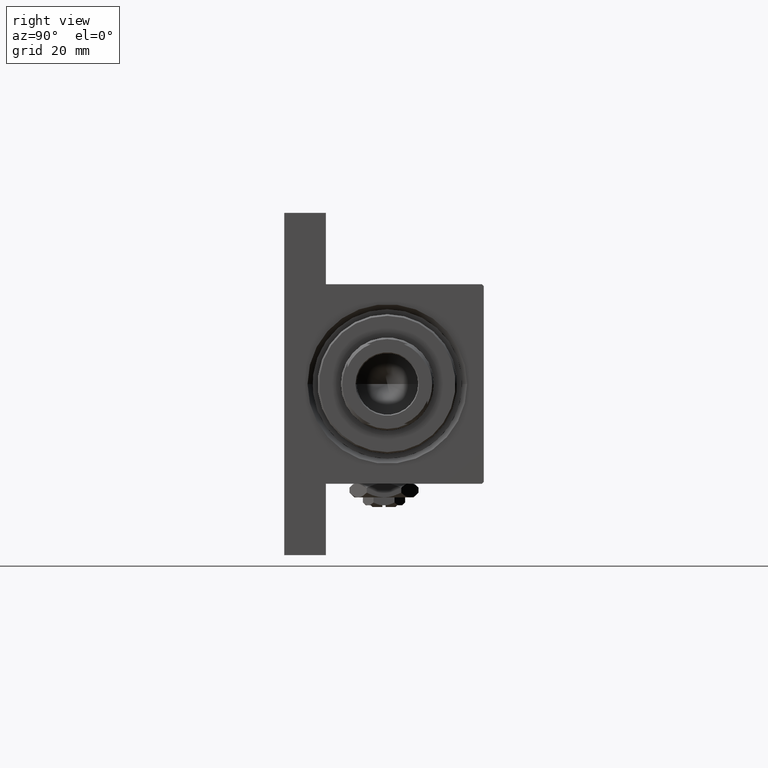
[diagram: clean part render]
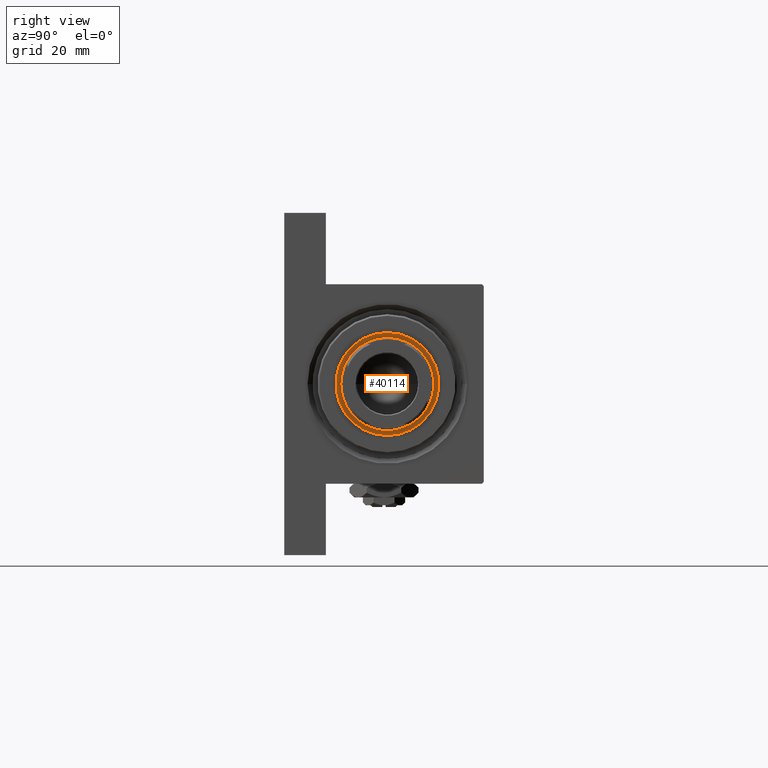
[diagram: same view with one face highlighted and labeled with its STEP entity id]
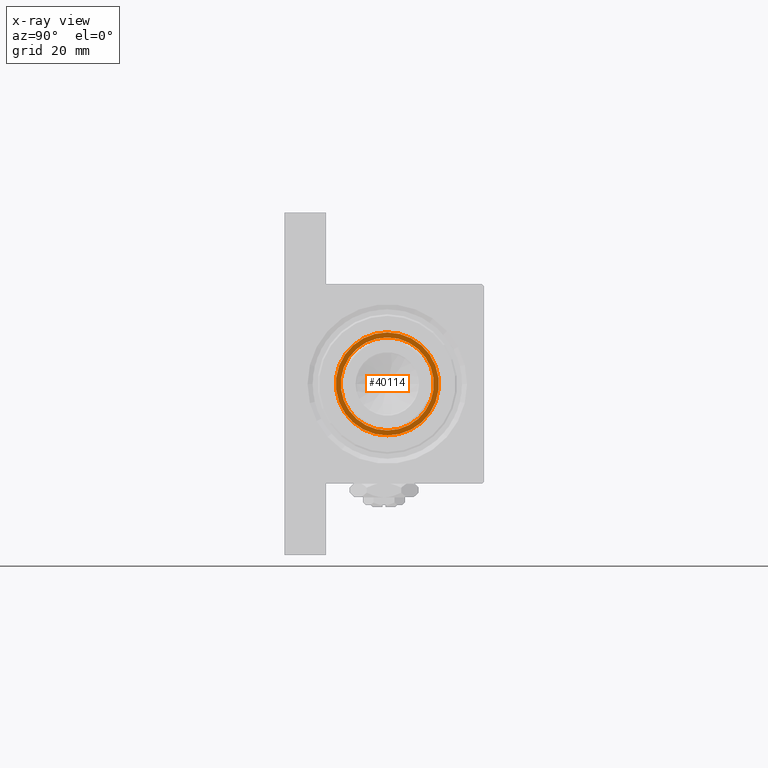
[diagram: x-ray of the same camera — body ghosted, the highlighted face saturated]
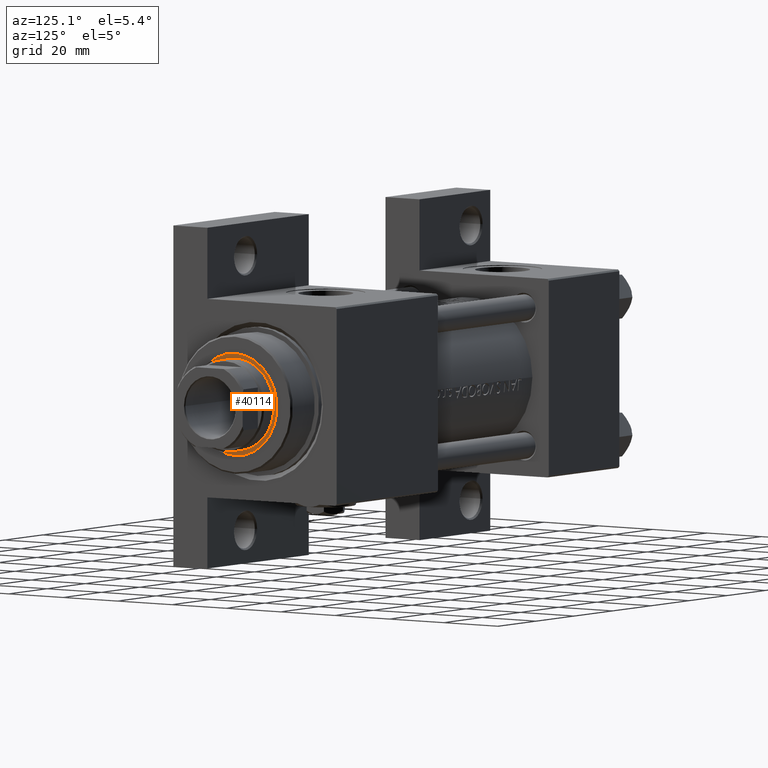
[diagram: same view with one face highlighted and labeled with its STEP entity id]
A machine part, right view. The second image highlights one B-rep face of the part: STEP entity #40114.
The next image is the same camera in x-ray: the body ghosted, the highlighted face saturated — about 0% of this face is hidden behind the body in this view.
A second angle (auxiliary view) of the same face is appended — the face is thin or edge-on in the first view.
In plain terms, the highlighted planar face has unit normal (1, 0, 0).
Its self-contained STEP definition (entity closure, byte-faithful):
#306 = DIRECTION ( 'NONE',  ( 0.000000000000000000, 0.000000000000000000, 1.000000000000000000 ) ) ;
#4085 = EDGE_CURVE ( 'NONE', #44222, #7214, #31123, .T. ) ;
#4403 = AXIS2_PLACEMENT_3D ( 'NONE', #18487, #41420, #30679 ) ;
#7214 = VERTEX_POINT ( 'NONE', #13756 ) ;
#7522 = CIRCLE ( 'NONE', #35390, 14.00000000000000178 ) ;
#8001 = FACE_BOUND ( 'NONE', #24059, .T. ) ;
#9234 = AXIS2_PLACEMENT_3D ( 'NONE', #37227, #306, #33748 ) ;
#9330 = AXIS2_PLACEMENT_3D ( 'NONE', #46332, #23369, #16162 ) ;
#13711 = EDGE_CURVE ( 'NONE', #7214, #44222, #7522, .T. ) ;
#13756 = CARTESIAN_POINT ( 'NONE',  ( 14.00000000000000178, 0.000000000000000000, 40.20000000000000284 ) ) ;
#14920 = CIRCLE ( 'NONE', #9330, 15.50000000000000000 ) ;
#16162 = DIRECTION ( 'NONE',  ( 1.000000000000000000, 0.000000000000000000, 0.000000000000000000 ) ) ;
#17100 = VERTEX_POINT ( 'NONE', #28652 ) ;
#18390 = AXIS2_PLACEMENT_3D ( 'NONE', #22452, #34419, #33932 ) ;
#18442 = ORIENTED_EDGE ( 'NONE', *, *, #4085, .T. ) ;
#18487 = CARTESIAN_POINT ( 'NONE',  ( 0.000000000000000000, 0.000000000000000000, 40.20000000000000284 ) ) ;
#18555 = VERTEX_POINT ( 'NONE', #40348 ) ;
#18569 = ORIENTED_EDGE ( 'NONE', *, *, #20154, .T. ) ;
#18585 = CARTESIAN_POINT ( 'NONE',  ( 0.000000000000000000, 0.000000000000000000, 40.20000000000000284 ) ) ;
#20154 = EDGE_CURVE ( 'NONE', #18555, #17100, #21187, .T. ) ;
#21187 = CIRCLE ( 'NONE', #9234, 15.50000000000000000 ) ;
#22452 = CARTESIAN_POINT ( 'NONE',  ( 0.000000000000000000, 0.000000000000000000, 40.20000000000000284 ) ) ;
#23369 = DIRECTION ( 'NONE',  ( 0.000000000000000000, 0.000000000000000000, 1.000000000000000000 ) ) ;
#24059 = EDGE_LOOP ( 'NONE', ( #39918, #18442 ) ) ;
#25562 = DIRECTION ( 'NONE',  ( 1.000000000000000000, 0.000000000000000000, 0.000000000000000000 ) ) ;
#28479 = CARTESIAN_POINT ( 'NONE',  ( -14.00000000000000178, 1.714505518806294835E-15, 40.20000000000000284 ) ) ;
#28652 = CARTESIAN_POINT ( 'NONE',  ( -15.50000000000000000, 1.898202538678397557E-15, 40.20000000000000284 ) ) ;
#30679 = DIRECTION ( 'NONE',  ( 1.000000000000000000, 0.000000000000000000, -0.000000000000000000 ) ) ;
#31123 = CIRCLE ( 'NONE', #18390, 14.00000000000000178 ) ;
#33748 = DIRECTION ( 'NONE',  ( 1.000000000000000000, 0.000000000000000000, 0.000000000000000000 ) ) ;
#33932 = DIRECTION ( 'NONE',  ( 1.000000000000000000, 0.000000000000000000, 0.000000000000000000 ) ) ;
#33939 = PLANE ( 'NONE',  #4403 ) ;
#34419 = DIRECTION ( 'NONE',  ( -0.000000000000000000, -0.000000000000000000, -1.000000000000000000 ) ) ;
#35288 = ORIENTED_EDGE ( 'NONE', *, *, #45307, .T. ) ;
#35390 = AXIS2_PLACEMENT_3D ( 'NONE', #18585, #48034, #25562 ) ;
#37227 = CARTESIAN_POINT ( 'NONE',  ( 0.000000000000000000, 0.000000000000000000, 40.20000000000000284 ) ) ;
#39264 = EDGE_LOOP ( 'NONE', ( #18569, #35288 ) ) ;
#39918 = ORIENTED_EDGE ( 'NONE', *, *, #13711, .T. ) ;
#40114 = ADVANCED_FACE ( 'NONE', ( #45412, #8001 ), #33939, .T. ) ;
#40348 = CARTESIAN_POINT ( 'NONE',  ( 15.50000000000000000, 0.000000000000000000, 40.20000000000000284 ) ) ;
#41420 = DIRECTION ( 'NONE',  ( 0.000000000000000000, 0.000000000000000000, 1.000000000000000000 ) ) ;
#44222 = VERTEX_POINT ( 'NONE', #28479 ) ;
#45307 = EDGE_CURVE ( 'NONE', #17100, #18555, #14920, .T. ) ;
#45412 = FACE_OUTER_BOUND ( 'NONE', #39264, .T. ) ;
#46332 = CARTESIAN_POINT ( 'NONE',  ( 0.000000000000000000, 0.000000000000000000, 40.20000000000000284 ) ) ;
#48034 = DIRECTION ( 'NONE',  ( -0.000000000000000000, -0.000000000000000000, -1.000000000000000000 ) ) ;